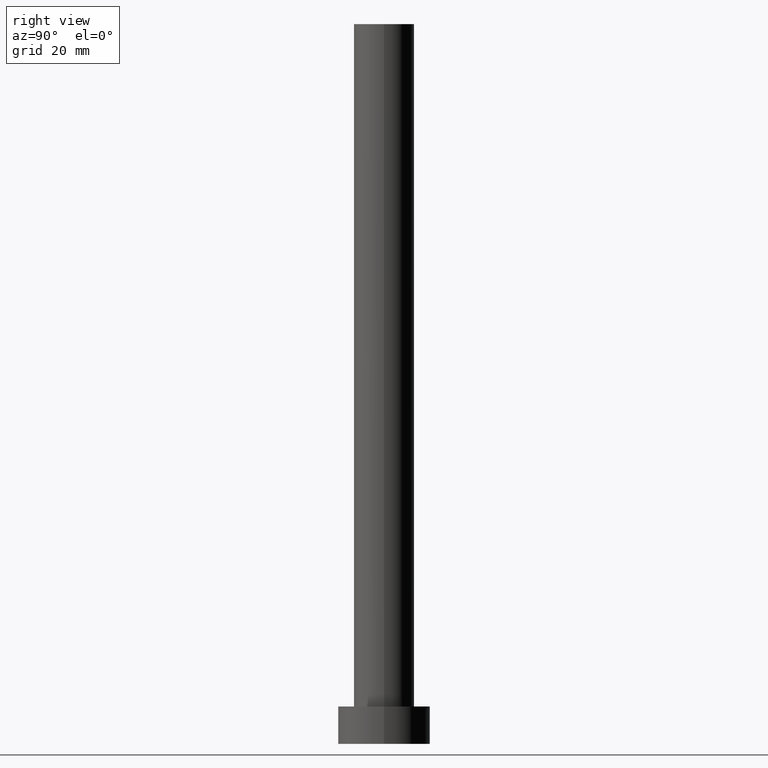
[diagram: clean part render]
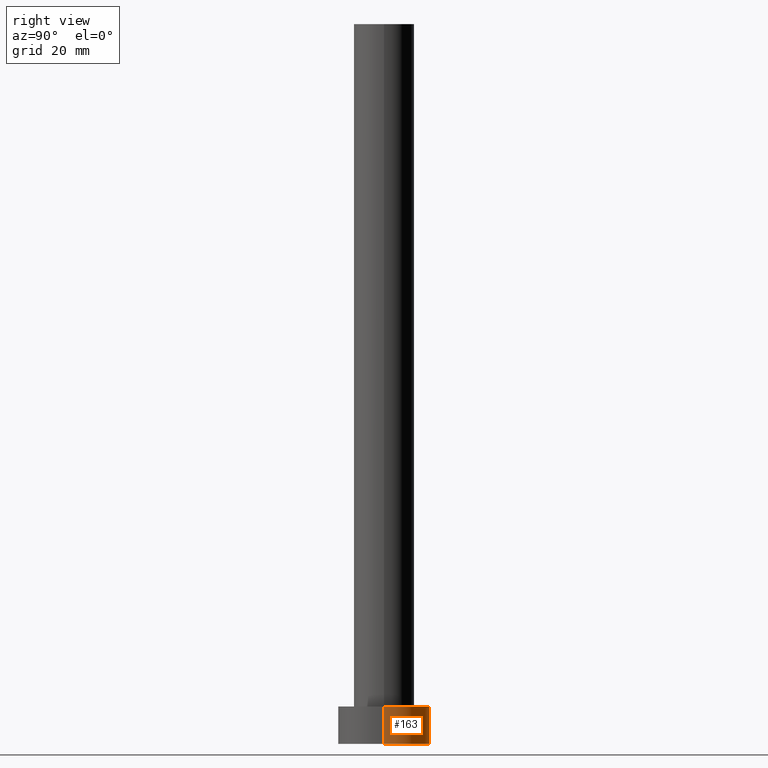
[diagram: same view with one face highlighted and labeled with its STEP entity id]
A machine part, right view. The second image highlights one B-rep face of the part: STEP entity #163.
In plain terms, the highlighted cylindrical surface (partial cylindrical patch) has radius 8 mm, axis along (-0, -0, -1).
Its self-contained STEP definition (entity closure, byte-faithful):
#6 = AXIS2_PLACEMENT_3D ( 'NONE', #17, #231, #73 ) ;
#7 = ORIENTED_EDGE ( 'NONE', *, *, #212, .T. ) ;
#8 = EDGE_LOOP ( 'NONE', ( #150, #25, #7, #68 ) ) ;
#15 = CARTESIAN_POINT ( 'NONE',  ( 8.000000000000000000, 9.797174393178823685E-16, 6.500000000000000000 ) ) ;
#17 = CARTESIAN_POINT ( 'NONE',  ( 0.000000000000000000, 0.000000000000000000, 6.500000000000000000 ) ) ;
#25 = ORIENTED_EDGE ( 'NONE', *, *, #137, .T. ) ;
#26 = AXIS2_PLACEMENT_3D ( 'NONE', #132, #174, #248 ) ;
#31 = CIRCLE ( 'NONE', #26, 8.000000000000000000 ) ;
#34 = DIRECTION ( 'NONE',  ( -0.000000000000000000, -0.000000000000000000, -1.000000000000000000 ) ) ;
#35 = CARTESIAN_POINT ( 'NONE',  ( -8.000000000000000000, 0.000000000000000000, 6.500000000000000000 ) ) ;
#52 = CARTESIAN_POINT ( 'NONE',  ( 8.000000000000000000, 9.797174393178823685E-16, 6.500000000000000000 ) ) ;
#58 = CIRCLE ( 'NONE', #120, 8.000000000000000000 ) ;
#68 = ORIENTED_EDGE ( 'NONE', *, *, #252, .F. ) ;
#73 = DIRECTION ( 'NONE',  ( -1.000000000000000000, 0.000000000000000000, 0.000000000000000000 ) ) ;
#78 = LINE ( 'NONE', #52, #114 ) ;
#83 = EDGE_CURVE ( 'NONE', #129, #244, #31, .T. ) ;
#94 = DIRECTION ( 'NONE',  ( 1.000000000000000000, 0.000000000000000000, 0.000000000000000000 ) ) ;
#96 = CARTESIAN_POINT ( 'NONE',  ( 0.000000000000000000, 0.000000000000000000, 0.000000000000000000 ) ) ;
#98 = DIRECTION ( 'NONE',  ( -0.000000000000000000, -0.000000000000000000, -1.000000000000000000 ) ) ;
#110 = CARTESIAN_POINT ( 'NONE',  ( -8.000000000000000000, 0.000000000000000000, 0.000000000000000000 ) ) ;
#114 = VECTOR ( 'NONE', #34, 1000.000000000000000 ) ;
#115 = VECTOR ( 'NONE', #98, 1000.000000000000000 ) ;
#117 = CARTESIAN_POINT ( 'NONE',  ( -8.000000000000000000, 0.000000000000000000, 6.500000000000000000 ) ) ;
#120 = AXIS2_PLACEMENT_3D ( 'NONE', #96, #177, #94 ) ;
#123 = VERTEX_POINT ( 'NONE', #110 ) ;
#129 = VERTEX_POINT ( 'NONE', #15 ) ;
#132 = CARTESIAN_POINT ( 'NONE',  ( 0.000000000000000000, 0.000000000000000000, 6.500000000000000000 ) ) ;
#137 = EDGE_CURVE ( 'NONE', #129, #165, #78, .T. ) ;
#140 = LINE ( 'NONE', #35, #115 ) ;
#150 = ORIENTED_EDGE ( 'NONE', *, *, #83, .F. ) ;
#154 = CYLINDRICAL_SURFACE ( 'NONE', #6, 8.000000000000000000 ) ;
#163 = ADVANCED_FACE ( 'NONE', ( #175 ), #154, .T. ) ;
#165 = VERTEX_POINT ( 'NONE', #230 ) ;
#174 = DIRECTION ( 'NONE',  ( 0.000000000000000000, 0.000000000000000000, 1.000000000000000000 ) ) ;
#175 = FACE_OUTER_BOUND ( 'NONE', #8, .T. ) ;
#177 = DIRECTION ( 'NONE',  ( 0.000000000000000000, 0.000000000000000000, 1.000000000000000000 ) ) ;
#212 = EDGE_CURVE ( 'NONE', #165, #123, #58, .T. ) ;
#230 = CARTESIAN_POINT ( 'NONE',  ( 8.000000000000000000, 9.797174393178823685E-16, 0.000000000000000000 ) ) ;
#231 = DIRECTION ( 'NONE',  ( -0.000000000000000000, -0.000000000000000000, -1.000000000000000000 ) ) ;
#244 = VERTEX_POINT ( 'NONE', #117 ) ;
#248 = DIRECTION ( 'NONE',  ( 1.000000000000000000, 0.000000000000000000, 0.000000000000000000 ) ) ;
#252 = EDGE_CURVE ( 'NONE', #244, #123, #140, .T. ) ;